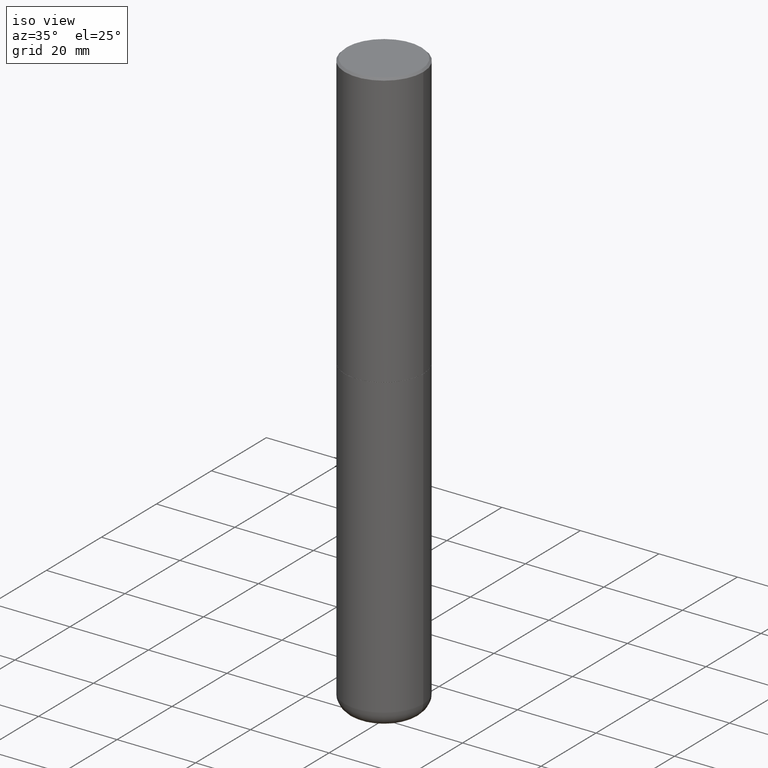
[diagram: clean part render]
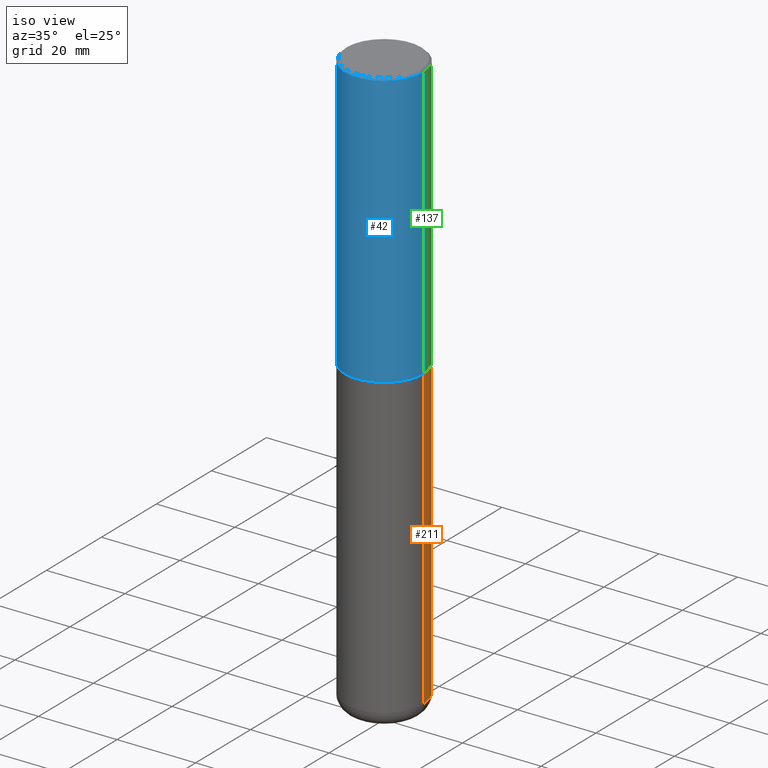
[diagram: same view with three faces highlighted in distinct colors, each labeled with its STEP entity id]
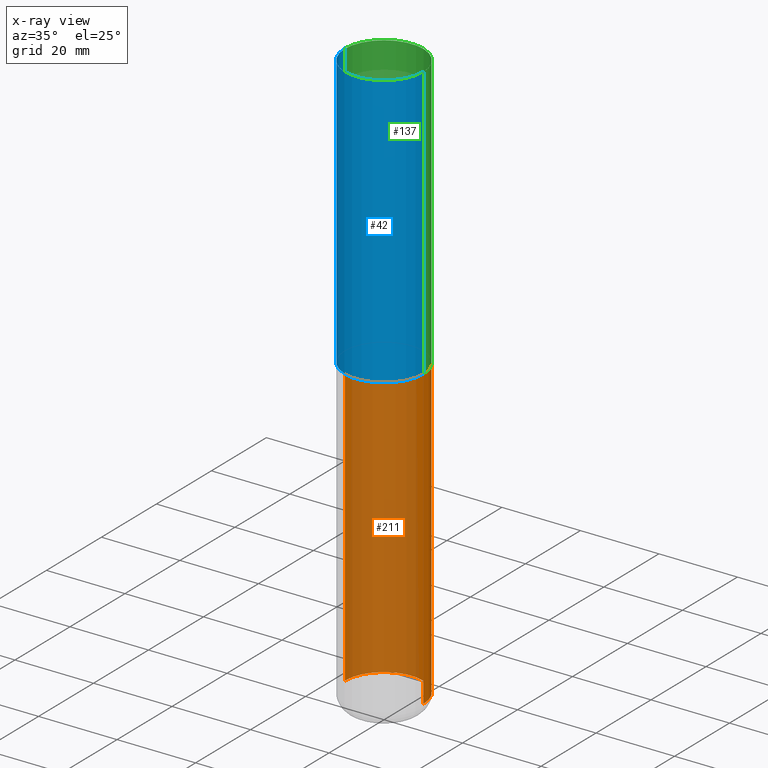
[diagram: x-ray of the same camera — body ghosted, the three highlighted faces saturated]
A machine part, iso view with three faces highlighted in distinct colors.
The next image is the same camera in x-ray (body ghosted, the three faces saturated) — at least one of them is partly hidden behind the body in this view.
Their STEP definitions:

[orange] entity #211 — the highlighted cylindrical surface (partial cylindrical patch) has radius 10 mm, axis along (-0, 0, 1).
#15 = DIRECTION ( 'NONE',  ( 1.000000000000000000, -6.982962677686267499E-15, 0.000000000000000000 ) ) ;
#44 = DIRECTION ( 'NONE',  ( -2.445468806185136877E-29, 3.491481338843145188E-15, 1.000000000000000000 ) ) ;
#51 = VECTOR ( 'NONE', #44, 39.37007874015748143 ) ;
#59 = CARTESIAN_POINT ( 'NONE',  ( 0.3937000000000000499, -1.237136582792290287E-14, -2.755899999999998240 ) ) ;
#66 = VERTEX_POINT ( 'NONE', #59 ) ;
#76 = CARTESIAN_POINT ( 'NONE',  ( 0.3937000000000000499, -2.749192406205083217E-15, 1.919750796630860172E-29 ) ) ;
#125 = ORIENTED_EDGE ( 'NONE', *, *, #216, .T. ) ;
#134 = CARTESIAN_POINT ( 'NONE',  ( 0.000000000000000000, 0.000000000000000000, 0.000000000000000000 ) ) ;
#135 = EDGE_CURVE ( 'NONE', #66, #163, #223, .T. ) ;
#163 = VERTEX_POINT ( 'NONE', #239 ) ;
#178 = DIRECTION ( 'NONE',  ( -2.445468806185136597E-29, 3.491481338843145583E-15, 1.000000000000000000 ) ) ;
#183 = EDGE_CURVE ( 'NONE', #217, #66, #333, .T. ) ;
#188 = AXIS2_PLACEMENT_3D ( 'NONE', #134, #272, #268 ) ;
#189 = CARTESIAN_POINT ( 'NONE',  ( -0.3937000000000000499, 2.797406750687514786E-15, -1.936584745033356735E-29 ) ) ;
#211 = ADVANCED_FACE ( 'NONE', ( #302 ), #273, .T. ) ;
#216 = EDGE_CURVE ( 'NONE', #217, #342, #370, .T. ) ;
#217 = VERTEX_POINT ( 'NONE', #244 ) ;
#223 = CIRCLE ( 'NONE', #324, 0.3937000000000000499 ) ;
#228 = CARTESIAN_POINT ( 'NONE',  ( -0.3937000000000002164, -1.727162798498288620E-14, -5.748000000000000220 ) ) ;
#239 = CARTESIAN_POINT ( 'NONE',  ( -0.3937000000000000499, -1.204819732800659672E-14, -2.755899999999998240 ) ) ;
#244 = CARTESIAN_POINT ( 'NONE',  ( 0.3937000000000002164, -2.281822714187548973E-14, -5.748000000000000220 ) ) ;
#245 = LINE ( 'NONE', #189, #406 ) ;
#253 = ORIENTED_EDGE ( 'NONE', *, *, #183, .F. ) ;
#268 = DIRECTION ( 'NONE',  ( 1.000000000000000000, -6.982962677686265922E-15, 4.876176775795935793E-29 ) ) ;
#272 = DIRECTION ( 'NONE',  ( -2.445468806185136597E-29, 3.491481338843145583E-15, 1.000000000000000000 ) ) ;
#273 = CYLINDRICAL_SURFACE ( 'NONE', #188, 0.3937000000000000499 ) ;
#285 = ORIENTED_EDGE ( 'NONE', *, *, #135, .F. ) ;
#296 = EDGE_CURVE ( 'NONE', #342, #163, #245, .T. ) ;
#302 = FACE_OUTER_BOUND ( 'NONE', #307, .T. ) ;
#307 = EDGE_LOOP ( 'NONE', ( #125, #338, #285, #253 ) ) ;
#324 = AXIS2_PLACEMENT_3D ( 'NONE', #401, #178, #399 ) ;
#331 = AXIS2_PLACEMENT_3D ( 'NONE', #366, #364, #15 ) ;
#333 = LINE ( 'NONE', #76, #51 ) ;
#338 = ORIENTED_EDGE ( 'NONE', *, *, #296, .T. ) ;
#342 = VERTEX_POINT ( 'NONE', #228 ) ;
#364 = DIRECTION ( 'NONE',  ( -2.445468806185136597E-29, 3.491481338843145583E-15, 1.000000000000000000 ) ) ;
#366 = CARTESIAN_POINT ( 'NONE',  ( 1.405655469795216423E-28, -2.006903473567040335E-14, -5.748000000000000220 ) ) ;
#370 = CIRCLE ( 'NONE', #331, 0.3937000000000000499 ) ;
#378 = DIRECTION ( 'NONE',  ( -2.445468806185136877E-29, 3.491481338843145188E-15, 1.000000000000000000 ) ) ;
#399 = DIRECTION ( 'NONE',  ( 1.000000000000000000, -6.982962677686267499E-15, 0.000000000000000000 ) ) ;
#401 = CARTESIAN_POINT ( 'NONE',  ( 6.739467482965614869E-29, -9.622173421717819657E-15, -2.755899999999998240 ) ) ;
#406 = VECTOR ( 'NONE', #378, 39.37007874015748143 ) ;

[blue] entity #42 — the highlighted cylindrical surface (partial cylindrical patch) has radius 10 mm, axis along (-0, 0, 1).
#4 = DIRECTION ( 'NONE',  ( 1.000000000000000000, -6.982962677686265922E-15, 0.000000000000000000 ) ) ;
#17 = CARTESIAN_POINT ( 'NONE',  ( -0.3937000000000000499, 2.679362779428219918E-15, -0.02000000000000008715 ) ) ;
#22 = ORIENTED_EDGE ( 'NONE', *, *, #340, .T. ) ;
#25 = CARTESIAN_POINT ( 'NONE',  ( 4.890937612370294178E-31, -6.982962677686321191E-17, -0.02000000000000008715 ) ) ;
#26 = DIRECTION ( 'NONE',  ( -2.445468806185136877E-29, 3.491481338843145188E-15, 1.000000000000000000 ) ) ;
#27 = ORIENTED_EDGE ( 'NONE', *, *, #410, .F. ) ;
#34 = CARTESIAN_POINT ( 'NONE',  ( 6.737022014159429266E-29, -9.618681940378976650E-15, -2.754899999999998350 ) ) ;
#42 = ADVANCED_FACE ( 'NONE', ( #289 ), #193, .T. ) ;
#68 = DIRECTION ( 'NONE',  ( 1.000000000000000000, -6.982962677686266711E-15, 4.876176775795935793E-29 ) ) ;
#84 = LINE ( 'NONE', #182, #173 ) ;
#103 = CIRCLE ( 'NONE', #224, 0.3937000000000004385 ) ;
#119 = DIRECTION ( 'NONE',  ( 1.000000000000000000, -6.982962677686265922E-15, 0.000000000000000000 ) ) ;
#144 = VECTOR ( 'NONE', #26, 39.37007874015748143 ) ;
#148 = VERTEX_POINT ( 'NONE', #368 ) ;
#164 = DIRECTION ( 'NONE',  ( -2.445468806185136597E-29, 3.491481338843145583E-15, 1.000000000000000000 ) ) ;
#170 = CARTESIAN_POINT ( 'NONE',  ( 0.3937000000000000499, -2.770807688499515734E-15, -0.02000000000000008715 ) ) ;
#173 = VECTOR ( 'NONE', #254, 39.37007874015748143 ) ;
#174 = CARTESIAN_POINT ( 'NONE',  ( 0.3937000000000004385, -1.236787434658406144E-14, -2.754899999999998350 ) ) ;
#181 = VERTEX_POINT ( 'NONE', #170 ) ;
#182 = CARTESIAN_POINT ( 'NONE',  ( 0.3937000000000002164, -2.749192406205084794E-15, 1.919750796630861012E-29 ) ) ;
#193 = CYLINDRICAL_SURFACE ( 'NONE', #279, 0.3937000000000002164 ) ;
#195 = VERTEX_POINT ( 'NONE', #174 ) ;
#209 = AXIS2_PLACEMENT_3D ( 'NONE', #25, #408, #119 ) ;
#220 = ORIENTED_EDGE ( 'NONE', *, *, #230, .T. ) ;
#224 = AXIS2_PLACEMENT_3D ( 'NONE', #34, #164, #4 ) ;
#230 = EDGE_CURVE ( 'NONE', #195, #181, #84, .T. ) ;
#254 = DIRECTION ( 'NONE',  ( -2.445468806185136877E-29, 3.491481338843145188E-15, 1.000000000000000000 ) ) ;
#279 = AXIS2_PLACEMENT_3D ( 'NONE', #388, #322, #68 ) ;
#288 = CIRCLE ( 'NONE', #209, 0.3937000000000000499 ) ;
#289 = FACE_OUTER_BOUND ( 'NONE', #349, .T. ) ;
#316 = EDGE_CURVE ( 'NONE', #323, #181, #288, .T. ) ;
#322 = DIRECTION ( 'NONE',  ( -2.445468806185136597E-29, 3.491481338843145583E-15, 1.000000000000000000 ) ) ;
#323 = VERTEX_POINT ( 'NONE', #17 ) ;
#340 = EDGE_CURVE ( 'NONE', #148, #195, #103, .T. ) ;
#349 = EDGE_LOOP ( 'NONE', ( #27, #22, #220, #412 ) ) ;
#368 = CARTESIAN_POINT ( 'NONE',  ( -0.3937000000000004385, -2.046849032890400849E-15, -2.754899999999998350 ) ) ;
#384 = CARTESIAN_POINT ( 'NONE',  ( -0.3937000000000002164, 2.797406750687515970E-15, -1.936584745033357576E-29 ) ) ;
#388 = CARTESIAN_POINT ( 'NONE',  ( 0.000000000000000000, 0.000000000000000000, 0.000000000000000000 ) ) ;
#391 = LINE ( 'NONE', #384, #144 ) ;
#408 = DIRECTION ( 'NONE',  ( -2.445468806185136597E-29, 3.491481338843145583E-15, 1.000000000000000000 ) ) ;
#410 = EDGE_CURVE ( 'NONE', #148, #323, #391, .T. ) ;
#412 = ORIENTED_EDGE ( 'NONE', *, *, #316, .F. ) ;

[green] entity #137 — the highlighted cylindrical surface (partial cylindrical patch) has radius 10 mm, axis along (-0, 0, 1).
#2 = EDGE_CURVE ( 'NONE', #195, #148, #213, .T. ) ;
#17 = CARTESIAN_POINT ( 'NONE',  ( -0.3937000000000000499, 2.679362779428219918E-15, -0.02000000000000008715 ) ) ;
#26 = DIRECTION ( 'NONE',  ( -2.445468806185136877E-29, 3.491481338843145188E-15, 1.000000000000000000 ) ) ;
#47 = CARTESIAN_POINT ( 'NONE',  ( 4.890937612370294178E-31, -6.982962677686321191E-17, -0.02000000000000008715 ) ) ;
#84 = LINE ( 'NONE', #182, #173 ) ;
#93 = CIRCLE ( 'NONE', #385, 0.3937000000000000499 ) ;
#95 = ORIENTED_EDGE ( 'NONE', *, *, #190, .F. ) ;
#109 = DIRECTION ( 'NONE',  ( 1.000000000000000000, -6.982962677686266711E-15, 4.876176775795935793E-29 ) ) ;
#110 = FACE_OUTER_BOUND ( 'NONE', #407, .T. ) ;
#114 = AXIS2_PLACEMENT_3D ( 'NONE', #259, #394, #358 ) ;
#137 = ADVANCED_FACE ( 'NONE', ( #110 ), #138, .T. ) ;
#138 = CYLINDRICAL_SURFACE ( 'NONE', #203, 0.3937000000000002164 ) ;
#141 = DIRECTION ( 'NONE',  ( 1.000000000000000000, -6.982962677686265922E-15, 0.000000000000000000 ) ) ;
#144 = VECTOR ( 'NONE', #26, 39.37007874015748143 ) ;
#148 = VERTEX_POINT ( 'NONE', #368 ) ;
#170 = CARTESIAN_POINT ( 'NONE',  ( 0.3937000000000000499, -2.770807688499515734E-15, -0.02000000000000008715 ) ) ;
#173 = VECTOR ( 'NONE', #254, 39.37007874015748143 ) ;
#174 = CARTESIAN_POINT ( 'NONE',  ( 0.3937000000000004385, -1.236787434658406144E-14, -2.754899999999998350 ) ) ;
#177 = DIRECTION ( 'NONE',  ( -2.445468806185136597E-29, 3.491481338843145583E-15, 1.000000000000000000 ) ) ;
#181 = VERTEX_POINT ( 'NONE', #170 ) ;
#182 = CARTESIAN_POINT ( 'NONE',  ( 0.3937000000000002164, -2.749192406205084794E-15, 1.919750796630861012E-29 ) ) ;
#190 = EDGE_CURVE ( 'NONE', #181, #323, #93, .T. ) ;
#195 = VERTEX_POINT ( 'NONE', #174 ) ;
#203 = AXIS2_PLACEMENT_3D ( 'NONE', #207, #237, #109 ) ;
#207 = CARTESIAN_POINT ( 'NONE',  ( 0.000000000000000000, 0.000000000000000000, 0.000000000000000000 ) ) ;
#213 = CIRCLE ( 'NONE', #114, 0.3937000000000004385 ) ;
#230 = EDGE_CURVE ( 'NONE', #195, #181, #84, .T. ) ;
#237 = DIRECTION ( 'NONE',  ( -2.445468806185136597E-29, 3.491481338843145583E-15, 1.000000000000000000 ) ) ;
#254 = DIRECTION ( 'NONE',  ( -2.445468806185136877E-29, 3.491481338843145188E-15, 1.000000000000000000 ) ) ;
#259 = CARTESIAN_POINT ( 'NONE',  ( 6.737022014159429266E-29, -9.618681940378976650E-15, -2.754899999999998350 ) ) ;
#315 = ORIENTED_EDGE ( 'NONE', *, *, #230, .F. ) ;
#323 = VERTEX_POINT ( 'NONE', #17 ) ;
#356 = ORIENTED_EDGE ( 'NONE', *, *, #2, .T. ) ;
#358 = DIRECTION ( 'NONE',  ( 1.000000000000000000, -6.982962677686265922E-15, 0.000000000000000000 ) ) ;
#368 = CARTESIAN_POINT ( 'NONE',  ( -0.3937000000000004385, -2.046849032890400849E-15, -2.754899999999998350 ) ) ;
#384 = CARTESIAN_POINT ( 'NONE',  ( -0.3937000000000002164, 2.797406750687515970E-15, -1.936584745033357576E-29 ) ) ;
#385 = AXIS2_PLACEMENT_3D ( 'NONE', #47, #177, #141 ) ;
#391 = LINE ( 'NONE', #384, #144 ) ;
#394 = DIRECTION ( 'NONE',  ( -2.445468806185136597E-29, 3.491481338843145583E-15, 1.000000000000000000 ) ) ;
#407 = EDGE_LOOP ( 'NONE', ( #356, #409, #95, #315 ) ) ;
#409 = ORIENTED_EDGE ( 'NONE', *, *, #410, .T. ) ;
#410 = EDGE_CURVE ( 'NONE', #148, #323, #391, .T. ) ;